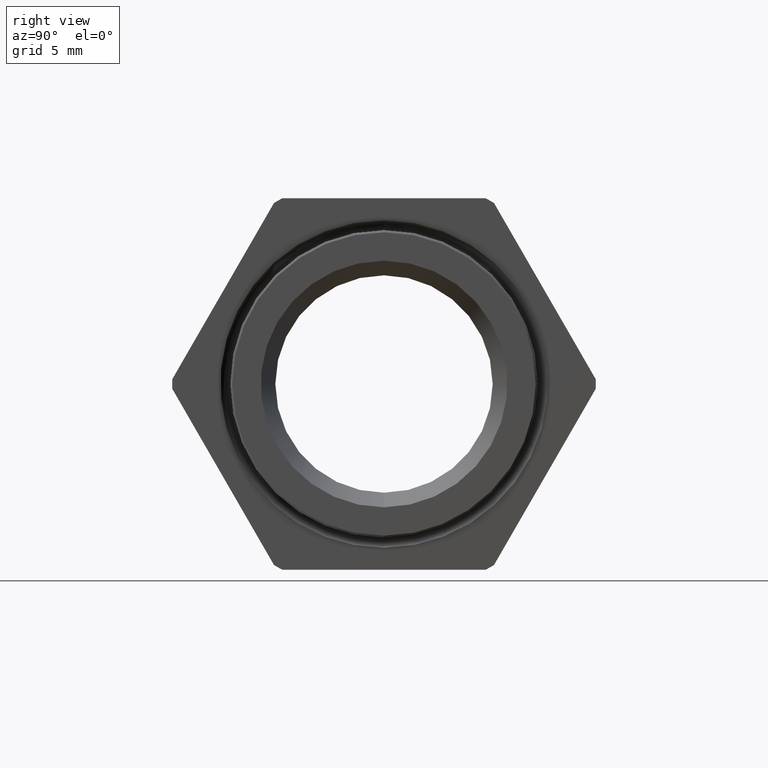
[diagram: clean part render]
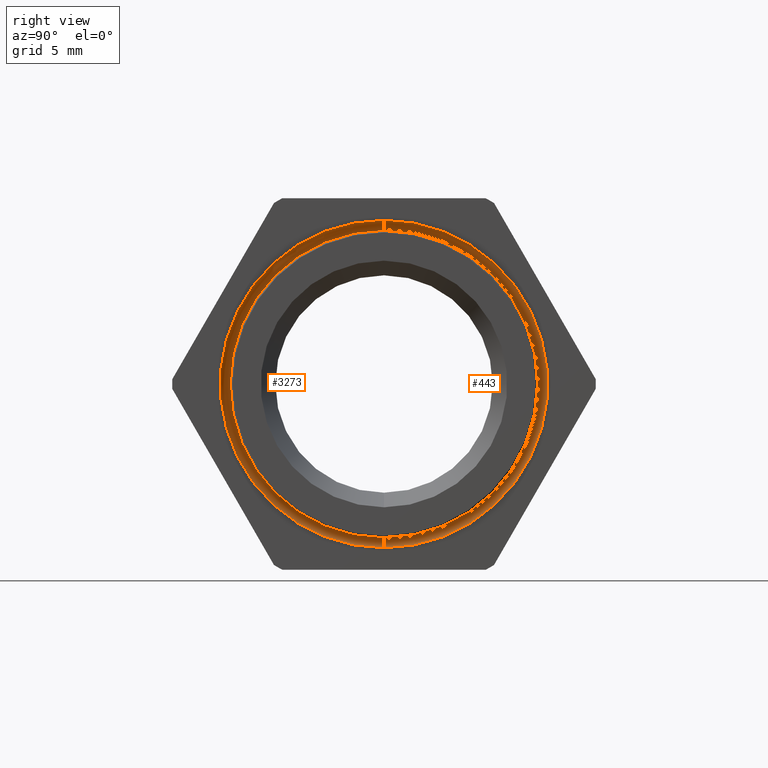
[diagram: same view with one multi-face feature highlighted, each face labeled with its STEP entity id]
A machine part, right view. The highlighted faces form ONE feature: a constant-radius fillet chain: 2 tangent blend faces with common blend radius 0.508 mm. The faces share edges in the B-rep.
Their STEP definitions:
[1] entity #443 (Torus):
#443 = ADVANCED_FACE ( 'NONE', ( #1338 ), #1337, .F. ) ;
#444 = EDGE_LOOP ( 'NONE', ( #445, #449, #3210, #3283 ) ) ;
#445 = ORIENTED_EDGE ( 'NONE', *, *, #446, .T. ) ;
#446 = EDGE_CURVE ( 'NONE', #447, #448, #1393, .T. ) ;
#447 = VERTEX_POINT ( 'NONE', #1388 ) ;
#448 = VERTEX_POINT ( 'NONE', #1387 ) ;
#449 = ORIENTED_EDGE ( 'NONE', *, *, #450, .T. ) ;
#450 = EDGE_CURVE ( 'NONE', #448, #451, #1386, .T. ) ;
#451 = VERTEX_POINT ( 'NONE', #1381 ) ;
#1337 = TOROIDAL_SURFACE ( 'NONE', #1397, 0.3950000000000000200, 0.01999999999999999700 ) ;
#1338 = FACE_OUTER_BOUND ( 'NONE', #444, .T. ) ;
#1381 = CARTESIAN_POINT ( 'NONE',  ( 0.3555097499999999600, 4.592425496802574200E-017, -0.3750000000000000600 ) ) ;
#1382 = DIRECTION ( 'NONE',  ( 0.0000000000000000000, 0.0000000000000000000, 1.000000000000000000 ) ) ;
#1383 = DIRECTION ( 'NONE',  ( -1.000000000000000000, 0.0000000000000000000, 0.0000000000000000000 ) ) ;
#1384 = CARTESIAN_POINT ( 'NONE',  ( 0.3555097499999999600, 0.0000000000000000000, 0.0000000000000000000 ) ) ;
#1385 = AXIS2_PLACEMENT_3D ( 'NONE', #1384, #1383, #1382 ) ;
#1386 = CIRCLE ( 'NONE', #1385, 0.3750000000000000600 ) ;
#1387 = CARTESIAN_POINT ( 'NONE',  ( 0.3555097499999999600, 0.0000000000000000000, 0.3750000000000000600 ) ) ;
#1388 = CARTESIAN_POINT ( 'NONE',  ( 0.3499999999999999800, 0.0000000000000000000, 0.4142260930752324500 ) ) ;
#1389 = DIRECTION ( 'NONE',  ( 0.0000000000000000000, 0.0000000000000000000, -1.000000000000000000 ) ) ;
#1390 = DIRECTION ( 'NONE',  ( 0.0000000000000000000, -1.000000000000000000, 0.0000000000000000000 ) ) ;
#1391 = CARTESIAN_POINT ( 'NONE',  ( 0.3555097499999999600, 0.0000000000000000000, 0.3950000000000000200 ) ) ;
#1392 = AXIS2_PLACEMENT_3D ( 'NONE', #1391, #1390, #1389 ) ;
#1393 = CIRCLE ( 'NONE', #1392, 0.01999999999999999000 ) ;
#1394 = DIRECTION ( 'NONE',  ( 0.0000000000000000000, 0.0000000000000000000, 1.000000000000000000 ) ) ;
#1395 = DIRECTION ( 'NONE',  ( -1.000000000000000000, 0.0000000000000000000, 0.0000000000000000000 ) ) ;
#1396 = CARTESIAN_POINT ( 'NONE',  ( 0.3555097499999999600, 0.0000000000000000000, 0.0000000000000000000 ) ) ;
#1397 = AXIS2_PLACEMENT_3D ( 'NONE', #1396, #1395, #1394 ) ;
#2075 = DIRECTION ( 'NONE',  ( 0.0000000000000000000, 0.0000000000000000000, 1.000000000000000000 ) ) ;
#2076 = DIRECTION ( 'NONE',  ( -1.000000000000000000, 0.0000000000000000000, 0.0000000000000000000 ) ) ;
#2077 = AXIS2_PLACEMENT_3D ( 'NONE', #2084, #2076, #2075 ) ;
#2078 = CIRCLE ( 'NONE', #2077, 0.4142260930752324500 ) ;
#2079 = DIRECTION ( 'NONE',  ( 0.0000000000000000000, -1.224646799147354900E-016, 1.000000000000000000 ) ) ;
#2080 = DIRECTION ( 'NONE',  ( 0.0000000000000000000, 1.000000000000000000, 1.224646799147353200E-016 ) ) ;
#2081 = CARTESIAN_POINT ( 'NONE',  ( 0.3555097499999999600, 4.837354856632045600E-017, -0.3950000000000000200 ) ) ;
#2082 = AXIS2_PLACEMENT_3D ( 'NONE', #2081, #2080, #2079 ) ;
#2083 = CIRCLE ( 'NONE', #2082, 0.01999999999999999000 ) ;
#2084 = CARTESIAN_POINT ( 'NONE',  ( 0.3499999999999999800, 0.0000000000000000000, 0.0000000000000000000 ) ) ;
#2085 = CARTESIAN_POINT ( 'NONE',  ( 0.3499999999999999800, 5.072806590078969600E-017, -0.4142260930752324500 ) ) ;
#3210 = ORIENTED_EDGE ( 'NONE', *, *, #3282, .F. ) ;
#3281 = VERTEX_POINT ( 'NONE', #2085 ) ;
#3282 = EDGE_CURVE ( 'NONE', #3281, #451, #2083, .T. ) ;
#3283 = ORIENTED_EDGE ( 'NONE', *, *, #3284, .F. ) ;
#3284 = EDGE_CURVE ( 'NONE', #447, #3281, #2078, .T. ) ;
[2] entity #3273 (Torus):
#446 = EDGE_CURVE ( 'NONE', #447, #448, #1393, .T. ) ;
#447 = VERTEX_POINT ( 'NONE', #1388 ) ;
#448 = VERTEX_POINT ( 'NONE', #1387 ) ;
#451 = VERTEX_POINT ( 'NONE', #1381 ) ;
#1381 = CARTESIAN_POINT ( 'NONE',  ( 0.3555097499999999600, 4.592425496802574200E-017, -0.3750000000000000600 ) ) ;
#1387 = CARTESIAN_POINT ( 'NONE',  ( 0.3555097499999999600, 0.0000000000000000000, 0.3750000000000000600 ) ) ;
#1388 = CARTESIAN_POINT ( 'NONE',  ( 0.3499999999999999800, 0.0000000000000000000, 0.4142260930752324500 ) ) ;
#1389 = DIRECTION ( 'NONE',  ( 0.0000000000000000000, 0.0000000000000000000, -1.000000000000000000 ) ) ;
#1390 = DIRECTION ( 'NONE',  ( 0.0000000000000000000, -1.000000000000000000, 0.0000000000000000000 ) ) ;
#1391 = CARTESIAN_POINT ( 'NONE',  ( 0.3555097499999999600, 0.0000000000000000000, 0.3950000000000000200 ) ) ;
#1392 = AXIS2_PLACEMENT_3D ( 'NONE', #1391, #1390, #1389 ) ;
#1393 = CIRCLE ( 'NONE', #1392, 0.01999999999999999000 ) ;
#2037 = DIRECTION ( 'NONE',  ( 0.0000000000000000000, 0.0000000000000000000, 1.000000000000000000 ) ) ;
#2038 = DIRECTION ( 'NONE',  ( -1.000000000000000000, 0.0000000000000000000, 0.0000000000000000000 ) ) ;
#2039 = AXIS2_PLACEMENT_3D ( 'NONE', #2041, #2038, #2037 ) ;
#2040 = TOROIDAL_SURFACE ( 'NONE', #2039, 0.3950000000000000200, 0.01999999999999999700 ) ;
#2041 = CARTESIAN_POINT ( 'NONE',  ( 0.3555097499999999600, 0.0000000000000000000, 0.0000000000000000000 ) ) ;
#2042 = FACE_OUTER_BOUND ( 'NONE', #3276, .T. ) ;
#2079 = DIRECTION ( 'NONE',  ( 0.0000000000000000000, -1.224646799147354900E-016, 1.000000000000000000 ) ) ;
#2080 = DIRECTION ( 'NONE',  ( 0.0000000000000000000, 1.000000000000000000, 1.224646799147353200E-016 ) ) ;
#2081 = CARTESIAN_POINT ( 'NONE',  ( 0.3555097499999999600, 4.837354856632045600E-017, -0.3950000000000000200 ) ) ;
#2082 = AXIS2_PLACEMENT_3D ( 'NONE', #2081, #2080, #2079 ) ;
#2083 = CIRCLE ( 'NONE', #2082, 0.01999999999999999000 ) ;
#2085 = CARTESIAN_POINT ( 'NONE',  ( 0.3499999999999999800, 5.072806590078969600E-017, -0.4142260930752324500 ) ) ;
#2093 = AXIS2_PLACEMENT_3D ( 'NONE', #2154, #2153, #2152 ) ;
#2094 = CIRCLE ( 'NONE', #2093, 0.3750000000000000600 ) ;
#2147 = DIRECTION ( 'NONE',  ( 0.0000000000000000000, 0.0000000000000000000, 1.000000000000000000 ) ) ;
#2148 = DIRECTION ( 'NONE',  ( -1.000000000000000000, 0.0000000000000000000, 0.0000000000000000000 ) ) ;
#2149 = CARTESIAN_POINT ( 'NONE',  ( 0.3499999999999999800, 0.0000000000000000000, 0.0000000000000000000 ) ) ;
#2150 = AXIS2_PLACEMENT_3D ( 'NONE', #2149, #2148, #2147 ) ;
#2151 = CIRCLE ( 'NONE', #2150, 0.4142260930752324500 ) ;
#2152 = DIRECTION ( 'NONE',  ( 0.0000000000000000000, 0.0000000000000000000, 1.000000000000000000 ) ) ;
#2153 = DIRECTION ( 'NONE',  ( -1.000000000000000000, 0.0000000000000000000, 0.0000000000000000000 ) ) ;
#2154 = CARTESIAN_POINT ( 'NONE',  ( 0.3555097499999999600, 0.0000000000000000000, 0.0000000000000000000 ) ) ;
#3273 = ADVANCED_FACE ( 'NONE', ( #2042 ), #2040, .F. ) ;
#3274 = ORIENTED_EDGE ( 'NONE', *, *, #3282, .T. ) ;
#3276 = EDGE_LOOP ( 'NONE', ( #3274, #3306, #3308, #3309 ) ) ;
#3281 = VERTEX_POINT ( 'NONE', #2085 ) ;
#3282 = EDGE_CURVE ( 'NONE', #3281, #451, #2083, .T. ) ;
#3306 = ORIENTED_EDGE ( 'NONE', *, *, #3307, .T. ) ;
#3307 = EDGE_CURVE ( 'NONE', #451, #448, #2094, .T. ) ;
#3308 = ORIENTED_EDGE ( 'NONE', *, *, #446, .F. ) ;
#3309 = ORIENTED_EDGE ( 'NONE', *, *, #3310, .F. ) ;
#3310 = EDGE_CURVE ( 'NONE', #3281, #447, #2151, .T. ) ;